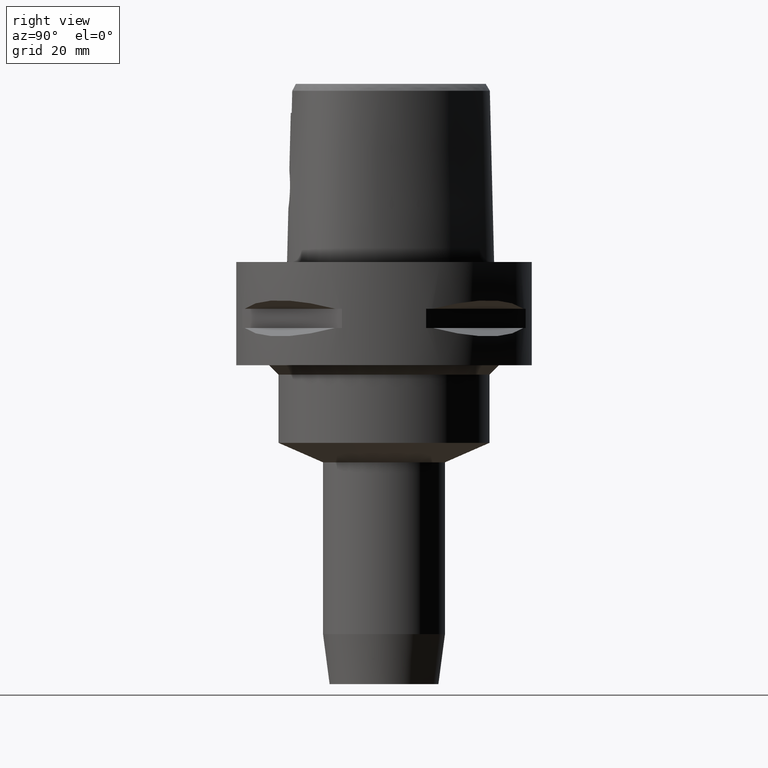
[diagram: clean part render]
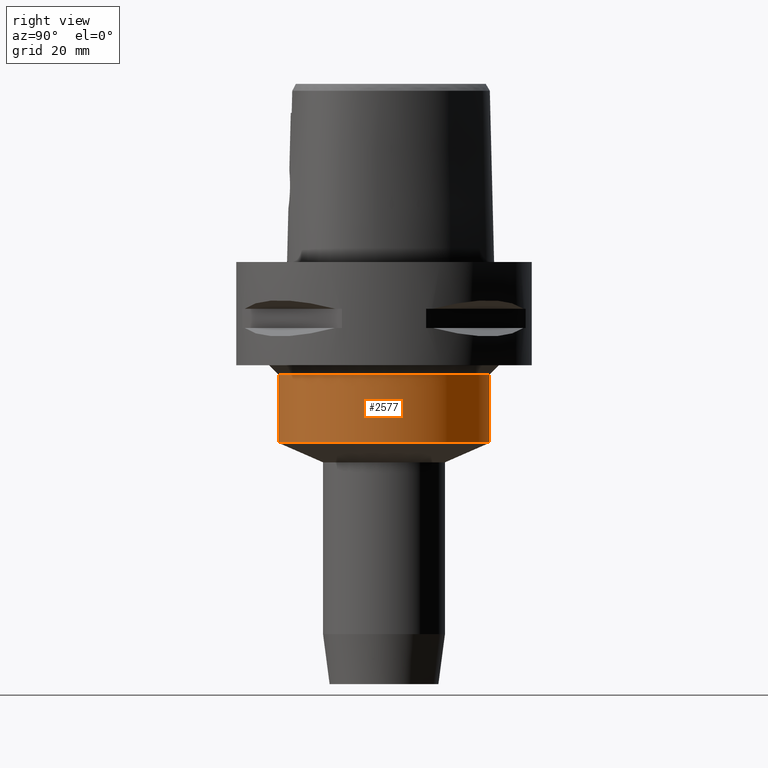
[diagram: same view with one face highlighted and labeled with its STEP entity id]
A machine part, right view. The second image highlights one B-rep face of the part: STEP entity #2577.
In plain terms, the highlighted cylindrical surface (partial cylindrical patch) has radius 22.5 mm, axis along (0, 0, -1).
Its self-contained STEP definition (entity closure, byte-faithful):
#562=CARTESIAN_POINT('',(0.E0,0.E0,-2.4E1));
#563=DIRECTION('',(0.E0,0.E0,-1.E0));
#564=DIRECTION('',(0.E0,1.E0,0.E0));
#565=AXIS2_PLACEMENT_3D('',#562,#563,#564);
#570=DIRECTION('',(0.E0,-1.954450440791E-14,-1.E0));
#571=VECTOR('',#570,1.454204662202E1);
#572=CARTESIAN_POINT('',(0.E0,2.25E1,-2.4E1));
#573=LINE('',#572,#571);
#577=DIRECTION('',(0.E0,1.954450440791E-14,-1.E0));
#578=VECTOR('',#577,1.454204662202E1);
#579=CARTESIAN_POINT('',(0.E0,-2.25E1,-2.4E1));
#580=LINE('',#579,#578);
#622=CARTESIAN_POINT('',(0.E0,0.E0,-3.854204662202E1));
#623=DIRECTION('',(0.E0,0.E0,1.E0));
#624=DIRECTION('',(0.E0,-1.E0,0.E0));
#625=AXIS2_PLACEMENT_3D('',#622,#623,#624);
#1640=CARTESIAN_POINT('',(0.E0,2.25E1,-2.4E1));
#1641=VERTEX_POINT('',#1640);
#1642=CARTESIAN_POINT('',(0.E0,-2.25E1,-2.4E1));
#1643=VERTEX_POINT('',#1642);
#1644=CARTESIAN_POINT('',(0.E0,2.25E1,-3.854204662202E1));
#1645=VERTEX_POINT('',#1644);
#1646=CARTESIAN_POINT('',(0.E0,-2.25E1,-3.854204662202E1));
#1647=VERTEX_POINT('',#1646);
#2563=CARTESIAN_POINT('',(0.E0,1.279755905109E-14,4.5E0));
#2564=DIRECTION('',(0.E0,0.E0,-1.E0));
#2565=DIRECTION('',(0.E0,-1.E0,0.E0));
#2566=AXIS2_PLACEMENT_3D('',#2563,#2564,#2565);
#2567=CYLINDRICAL_SURFACE('',#2566,2.25E1);
#2569=ORIENTED_EDGE('',*,*,#2568,.T.);
#2571=ORIENTED_EDGE('',*,*,#2570,.F.);
#2573=ORIENTED_EDGE('',*,*,#2572,.F.);
#2574=ORIENTED_EDGE('',*,*,#2556,.F.);
#2575=EDGE_LOOP('',(#2569,#2571,#2573,#2574));
#2576=FACE_OUTER_BOUND('',#2575,.F.);
#566=CIRCLE('',#565,2.25E1);
#626=CIRCLE('',#625,2.25E1);
#2556=EDGE_CURVE('',#1641,#1643,#566,.T.);
#2568=EDGE_CURVE('',#1641,#1645,#573,.T.);
#2570=EDGE_CURVE('',#1647,#1645,#626,.T.);
#2572=EDGE_CURVE('',#1643,#1647,#580,.T.);
#2577=ADVANCED_FACE('',(#2576),#2567,.T.);